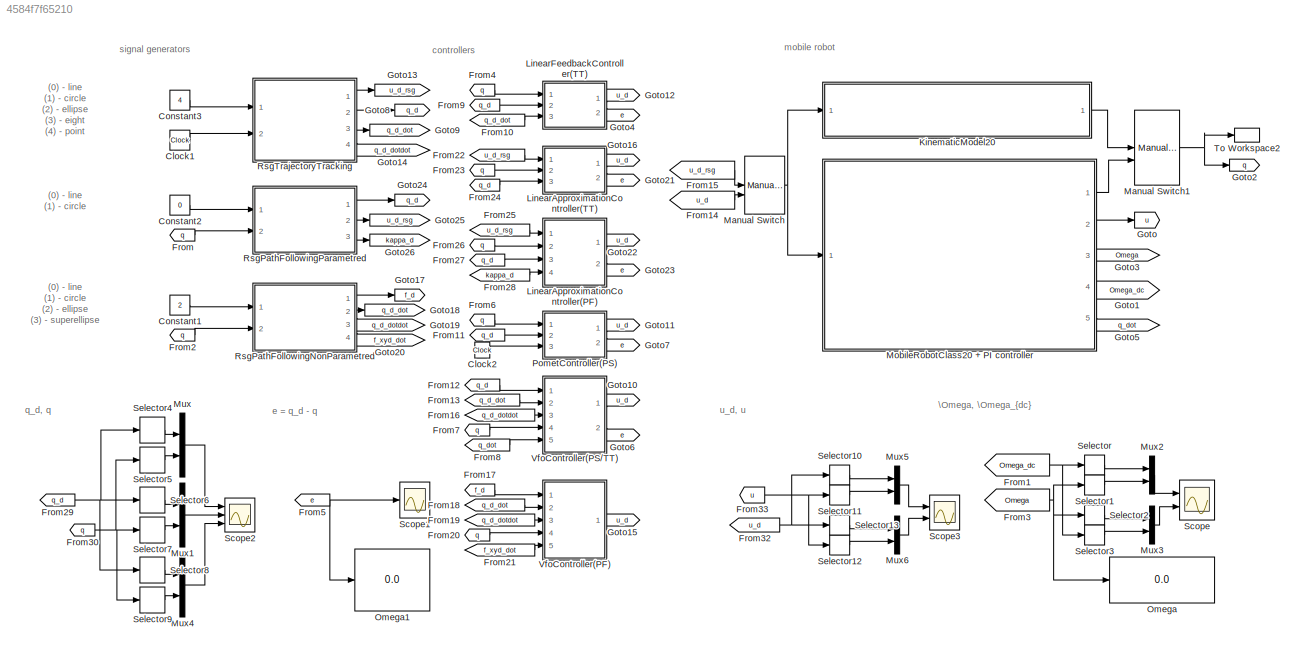
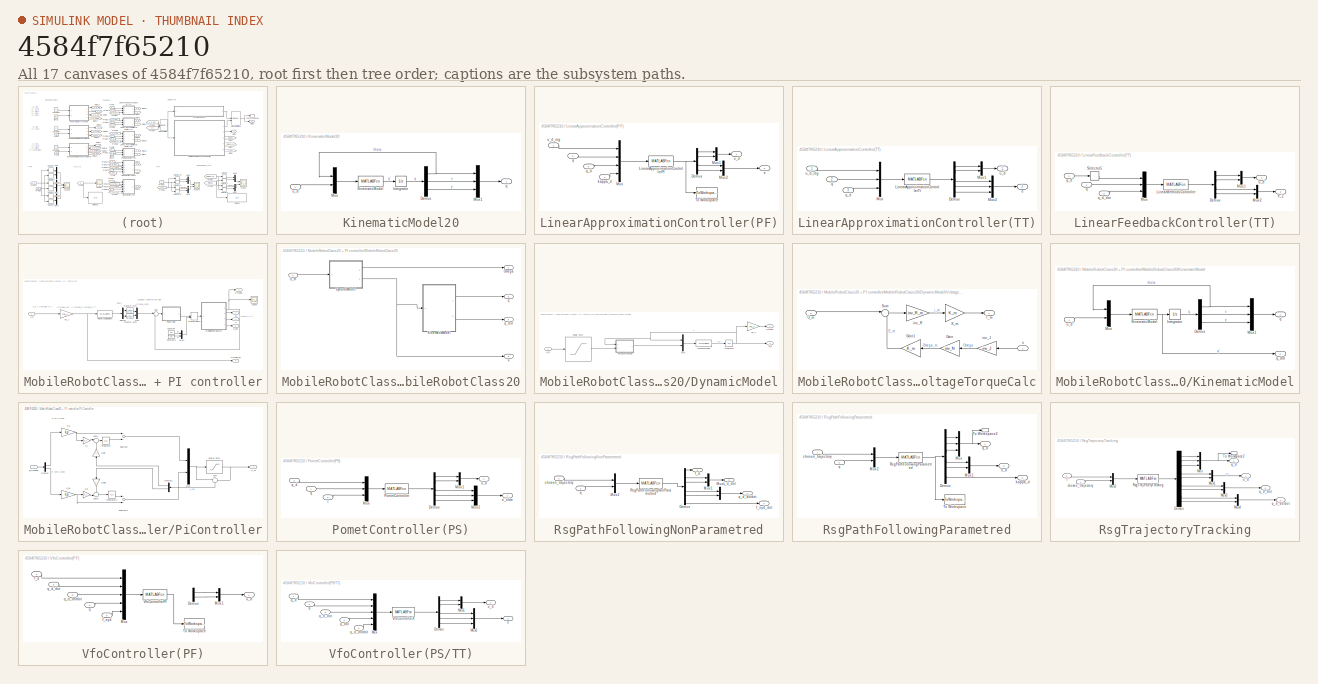
[diagram: thumbnail index - all 17 canvases of the model, root first then tree order]
MODEL slx_4584f7f65210
KIND model
CONFIG AbsTol = auto
CONFIG EnableMultiTasking = off
CONFIG FixedStep = t_pp
CONFIG MaxStep = t_pp
CONFIG MinStep = auto
CONFIG RelTol = 1e-3
CONFIG SampleTimeConstraint = Unconstrained
CONFIG Solver = ode45
CONFIG SolverName = ode45
CONFIG StartTime = 0.0
CONFIG StopTime = t_end
BLOCK [Clock] Clock1
BLOCK [Clock] Clock2
  Commented = on
BLOCK [Constant] Constant1
  Commented = on
  Value = 2
BLOCK [Constant] Constant2
  Commented = on
  Value = 0
BLOCK [Constant] Constant3
  Value = 4
BLOCK [From] From
  Commented = on
  GotoTag = q
BLOCK [From] From1
  GotoTag = Omega_dc
BLOCK [From] From10
  Commented = on
  GotoTag = q_d_dot
BLOCK [From] From11
  Commented = on
  GotoTag = q_d
BLOCK [From] From12
  GotoTag = q_d
BLOCK [From] From13
  GotoTag = q_d_dot
BLOCK [From] From14
  GotoTag = u_d
BLOCK [From] From15
  GotoTag = u_d_rsg
BLOCK [From] From16
  GotoTag = q_d_dotdot
BLOCK [From] From17
  Commented = on
  GotoTag = f_d
BLOCK [From] From18
  Commented = on
  GotoTag = q_d_dot
BLOCK [From] From19
  Commented = on
  GotoTag = q_d_dotdot
BLOCK [From] From2
  Commented = on
  GotoTag = q
BLOCK [From] From20
  Commented = on
  GotoTag = q
BLOCK [From] From21
  Commented = on
  GotoTag = f_xyd_dot
BLOCK [From] From22
  Commented = on
  GotoTag = u_d_rsg
BLOCK [From] From23
  Commented = on
  GotoTag = q
BLOCK [From] From24
  Commented = on
  GotoTag = q_d
BLOCK [From] From25
  Commented = on
  GotoTag = u_d_rsg
BLOCK [From] From26
  Commented = on
  GotoTag = q
BLOCK [From] From27
  Commented = on
  GotoTag = q_d
BLOCK [From] From28
  Commented = on
  GotoTag = kappa_d
BLOCK [From] From29
  GotoTag = q_d
BLOCK [From] From3
  GotoTag = Omega
BLOCK [From] From30
  GotoTag = q
BLOCK [From] From32
  GotoTag = u_d
BLOCK [From] From33
  GotoTag = u
BLOCK [From] From4
  Commented = on
  GotoTag = q
BLOCK [From] From5
  GotoTag = e
BLOCK [From] From6
  Commented = on
  GotoTag = q
BLOCK [From] From7
  GotoTag = q
BLOCK [From] From8
  GotoTag = q_dot
BLOCK [From] From9
  Commented = on
  GotoTag = q_d
BLOCK [Goto] Goto
  GotoTag = u
BLOCK [Goto] Goto1
  GotoTag = Omega_dc
BLOCK [Goto] Goto10
  GotoTag = u_d
BLOCK [Goto] Goto11
  Commented = on
  GotoTag = u_d
BLOCK [Goto] Goto12
  Commented = on
  GotoTag = u_d
BLOCK [Goto] Goto13
  GotoTag = u_d_rsg
BLOCK [Goto] Goto14
  GotoTag = q_d_dotdot
BLOCK [Goto] Goto15
  Commented = on
  GotoTag = u_d
BLOCK [Goto] Goto16
  Commented = on
  GotoTag = u_d
BLOCK [Goto] Goto17
  Commented = on
  GotoTag = f_d
BLOCK [Goto] Goto18
  Commented = on
  GotoTag = q_d_dot
BLOCK [Goto] Goto19
  Commented = on
  GotoTag = q_d_dotdot
BLOCK [Goto] Goto2
  GotoTag = q
BLOCK [Goto] Goto20
  Commented = on
  GotoTag = f_xyd_dot
BLOCK [Goto] Goto21
  Commented = on
  GotoTag = e
BLOCK [Goto] Goto22
  Commented = on
  GotoTag = u_d
BLOCK [Goto] Goto23
  Commented = on
  GotoTag = e
BLOCK [Goto] Goto24
  Commented = on
  GotoTag = q_d
BLOCK [Goto] Goto25
  Commented = on
  GotoTag = u_d_rsg
BLOCK [Goto] Goto26
  Commented = on
  GotoTag = kappa_d
BLOCK [Goto] Goto3
  GotoTag = Omega
BLOCK [Goto] Goto4
  Commented = on
  GotoTag = e
BLOCK [Goto] Goto5
  GotoTag = q_dot
BLOCK [Goto] Goto6
  GotoTag = e
BLOCK [Goto] Goto7
  Commented = on
  GotoTag = e
BLOCK [Goto] Goto8
  GotoTag = q_d
BLOCK [Goto] Goto9
  GotoTag = q_d_dot
BLOCK [SubSystem] KinematicModel20
  Ports = [1, 1]
  RequestExecContextInheritance = off
BLOCK [Demux] KinematicModel20/Demux
  DisplayOption = bar
  Outputs = 3
  Ports = [1, 3]
BLOCK [Integrator] KinematicModel20/Integrator
  InitialCondition = q_initial_conditions
  Ports = [1, 1]
BLOCK [MATLABFcn] KinematicModel20/KinematicModel
  MATLABFcn = KinematicModel
  Ports = [1, 1]
BLOCK [Mux] KinematicModel20/Mux
  DisplayOption = bar
  Inputs = 2
  Ports = [2, 1]
BLOCK [Mux] KinematicModel20/Mux1
  DisplayOption = bar
  Inputs = 3
  Ports = [3, 1]
BLOCK [Outport] KinematicModel20/q
  IconDisplay = Port number
BLOCK [Inport] KinematicModel20/u_d
  IconDisplay = Port number
BLOCK [SubSystem] LinearApproximationController(PF)
  Commented = on
  Ports = [4, 2]
  RequestExecContextInheritance = off
BLOCK [Demux] LinearApproximationController(PF)/Demux
  DisplayOption = bar
  Ports = [1, 4]
BLOCK [MATLABFcn] LinearApproximationController(PF)/LinearApproximationControllerPf
  MATLABFcn = LinearApproximationPf
  Ports = [1, 1]
BLOCK [Mux] LinearApproximationController(PF)/Mux
  DisplayOption = bar
  Ports = [4, 1]
BLOCK [Mux] LinearApproximationController(PF)/Mux1
  DisplayOption = bar
  Inputs = 2
  Ports = [2, 1]
BLOCK [Mux] LinearApproximationController(PF)/Mux2
  DisplayOption = bar
  Inputs = 2
  Ports = [2, 1]
BLOCK [ToWorkspace] LinearApproximationController(PF)/To Workspace
  Commented = on
  FixptAsFi = on
  MaxDataPoints = inf
  Ports = [1]
  SampleTime = -1
  Save2DSignal = 3-D array (concatenate along third dimension)
  VariableName = linear_output
BLOCK [Outport] LinearApproximationController(PF)/e
  IconDisplay = Port number
  Port = 2
BLOCK [Inport] LinearApproximationController(PF)/kappa_d
  IconDisplay = Port number
  Port = 4
BLOCK [Inport] LinearApproximationController(PF)/q
  IconDisplay = Port number
  Port = 2
BLOCK [Inport] LinearApproximationController(PF)/q_d
  IconDisplay = Port number
  Port = 3
BLOCK [Outport] LinearApproximationController(PF)/u_d
  IconDisplay = Port number
BLOCK [Inport] LinearApproximationController(PF)/u_d_rsg
  IconDisplay = Port number
BLOCK [SubSystem] LinearApproximationController(TT)
  Commented = on
  Ports = [3, 2]
  RequestExecContextInheritance = off
BLOCK [Demux] LinearApproximationController(TT)/Demux
  DisplayOption = bar
  Outputs = 5
  Ports = [1, 5]
BLOCK [MATLABFcn] LinearApproximationController(TT)/LinearApproximationControllerTt
  MATLABFcn = LinearApproximationTt
  Ports = [1, 1]
BLOCK [Mux] LinearApproximationController(TT)/Mux
  DisplayOption = bar
  Inputs = 3
  Ports = [3, 1]
BLOCK [Mux] LinearApproximationController(TT)/Mux1
  DisplayOption = bar
  Inputs = 2
  Ports = [2, 1]
BLOCK [Mux] LinearApproximationController(TT)/Mux2
  DisplayOption = bar
  Inputs = 3
  Ports = [3, 1]
BLOCK [Outport] LinearApproximationController(TT)/e
  IconDisplay = Port number
  Port = 2
BLOCK [Inport] LinearApproximationController(TT)/q
  IconDisplay = Port number
  Port = 2
BLOCK [Inport] LinearApproximationController(TT)/q_d
  IconDisplay = Port number
  Port = 3
BLOCK [Outport] LinearApproximationController(TT)/u_d
  IconDisplay = Port number
BLOCK [Inport] LinearApproximationController(TT)/u_d_rsg
  IconDisplay = Port number
BLOCK [SubSystem] LinearFeedbackController(TT)
  Commented = on
  Ports = [3, 2]
  RequestExecContextInheritance = off
BLOCK [Demux] LinearFeedbackController(TT)/Demux
  DisplayOption = bar
  Ports = [1, 4]
BLOCK [MATLABFcn] LinearFeedbackController(TT)/LinearMethodsController
  MATLABFcn = LinearMethodsController
  Ports = [1, 1]
BLOCK [Mux] LinearFeedbackController(TT)/Mux
  DisplayOption = bar
  Inputs = 3
  Ports = [3, 1]
BLOCK [Mux] LinearFeedbackController(TT)/Mux1
  DisplayOption = bar
  Inputs = 2
  Ports = [2, 1]
BLOCK [Mux] LinearFeedbackController(TT)/Mux2
  DisplayOption = bar
  Inputs = 2
  Ports = [2, 1]
BLOCK [Selector] LinearFeedbackController(TT)/Selector5
  IndexOptions = Index vector (dialog)
  Indices = [2 3]
  InputPortWidth = 3
  OutputSizes = 1
  Ports = [1, 1]
BLOCK [Outport] LinearFeedbackController(TT)/e_Z
  IconDisplay = Port number
  Port = 2
BLOCK [Inport] LinearFeedbackController(TT)/q
  IconDisplay = Port number
BLOCK [Inport] LinearFeedbackController(TT)/q_d
  IconDisplay = Port number
  Port = 2
BLOCK [Inport] LinearFeedbackController(TT)/q_d_dot
  IconDisplay = Port number
  Port = 3
BLOCK [Outport] LinearFeedbackController(TT)/u_d
  IconDisplay = Port number
BLOCK [ManualSwitch] Manual Switch
  CurrentSetting = 0
BLOCK [ManualSwitch] Manual Switch1
  CurrentSetting = 0
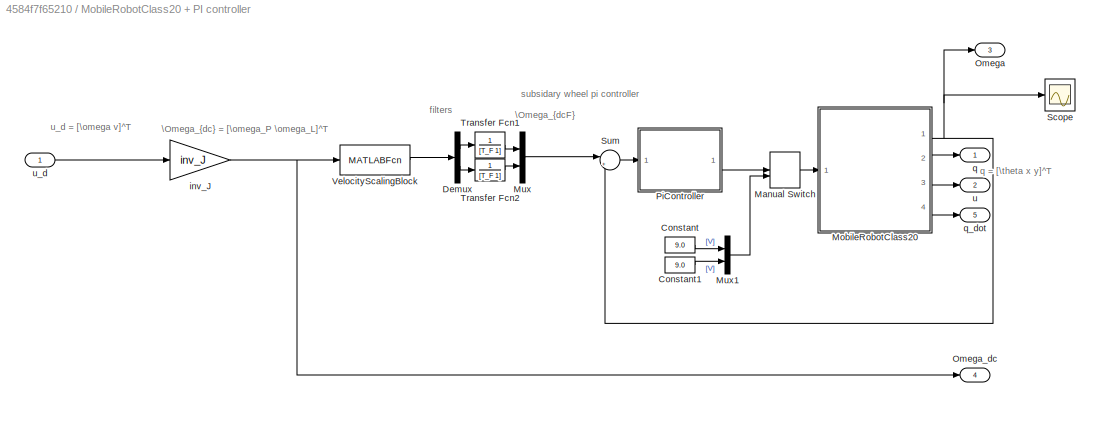
BLOCK [SubSystem] MobileRobotClass20 + PI controller
  Ports = [1, 5]
  RequestExecContextInheritance = off
BLOCK [Constant] MobileRobotClass20 + PI controller/Constant
  Value = 9.0
BLOCK [Constant] MobileRobotClass20 + PI controller/Constant1
  Value = 9.0
BLOCK [Demux] MobileRobotClass20 + PI controller/Demux
  DisplayOption = bar
  Outputs = 2
  Ports = [1, 2]
BLOCK [ManualSwitch] MobileRobotClass20 + PI controller/Manual Switch
BLOCK [SubSystem] MobileRobotClass20 + PI controller/MobileRobotClass20
  Ports = [1, 4]
  RequestExecContextInheritance = off
BLOCK [SubSystem] MobileRobotClass20 + PI controller/MobileRobotClass20/DynamicModel
  Ports = [1, 2]
  RequestExecContextInheritance = off
BLOCK [MATLABFcn] MobileRobotClass20 + PI controller/MobileRobotClass20/DynamicModel/DynamicModel
  MATLABFcn = DynamicModel
  Ports = [1, 1]
BLOCK [Integrator] MobileRobotClass20 + PI controller/MobileRobotClass20/DynamicModel/Integrator
  InitialCondition = u_initial_conditions
  Ports = [1, 1]
BLOCK [Mux] MobileRobotClass20 + PI controller/MobileRobotClass20/DynamicModel/Mux
  DisplayOption = bar
  Inputs = 2
  Ports = [2, 1]
BLOCK [Outport] MobileRobotClass20 + PI controller/MobileRobotClass20/DynamicModel/Omega
  IconDisplay = Port number
BLOCK [Inport] MobileRobotClass20 + PI controller/MobileRobotClass20/DynamicModel/U_m
  IconDisplay = Port number
BLOCK [SubSystem] MobileRobotClass20 + PI controller/MobileRobotClass20/DynamicModel/VoltageTorqueCalc
  Ports = [2, 1]
  RequestExecContextInheritance = off
BLOCK [Gain] MobileRobotClass20 + PI controller/MobileRobotClass20/DynamicModel/VoltageTorqueCalc/Gain
  Gain = inv_N
  Multiplication = Matrix(K*u) (u vector)
  OutDataTypeStr = Inherit: Inherit via internal rule
  ParamDataTypeStr = Inherit: Inherit via internal rule
  SaturateOnIntegerOverflow = off
BLOCK [Gain] MobileRobotClass20 + PI controller/MobileRobotClass20/DynamicModel/VoltageTorqueCalc/Gain1
  Gain = K_m
  Multiplication = Matrix(K*u) (u vector)
  OutDataTypeStr = Inherit: Inherit via internal rule
  ParamDataTypeStr = Inherit: Inherit via internal rule
  SaturateOnIntegerOverflow = off
BLOCK [Gain] MobileRobotClass20 + PI controller/MobileRobotClass20/DynamicModel/VoltageTorqueCalc/K_m
  Gain = K_m
  Multiplication = Matrix(K*u) (u vector)
  OutDataTypeStr = Inherit: Inherit via internal rule
  ParamDataTypeStr = Inherit: Inherit via internal rule
  SaturateOnIntegerOverflow = off
BLOCK [Sum] MobileRobotClass20 + PI controller/MobileRobotClass20/DynamicModel/VoltageTorqueCalc/Sum
  IconShape = round
  InputSameDT = off
  Inputs = |+-
  OutDataTypeStr = Inherit: Inherit via internal rule
  Ports = [2, 1]
  SaturateOnIntegerOverflow = off
BLOCK [Outport] MobileRobotClass20 + PI controller/MobileRobotClass20/DynamicModel/VoltageTorqueCalc/T_m
  IconDisplay = Port number
BLOCK [Inport] MobileRobotClass20 + PI controller/MobileRobotClass20/DynamicModel/VoltageTorqueCalc/U_m
  IconDisplay = Port number
  Port = 2
BLOCK [Gain] MobileRobotClass20 + PI controller/MobileRobotClass20/DynamicModel/VoltageTorqueCalc/inv_J
  Gain = inv_J
  Multiplication = Matrix(K*u) (u vector)
  OutDataTypeStr = Inherit: Inherit via internal rule
  ParamDataTypeStr = Inherit: Inherit via internal rule
  SaturateOnIntegerOverflow = off
BLOCK [Gain] MobileRobotClass20 + PI controller/MobileRobotClass20/DynamicModel/VoltageTorqueCalc/inv_R
  Gain = inv_R_m
  Multiplication = Matrix(K*u) (u vector)
  OutDataTypeStr = Inherit: Inherit via internal rule
  ParamDataTypeStr = Inherit: Inherit via internal rule
  SaturateOnIntegerOverflow = off
BLOCK [Inport] MobileRobotClass20 + PI controller/MobileRobotClass20/DynamicModel/VoltageTorqueCalc/u
  IconDisplay = Port number
BLOCK [Gain] MobileRobotClass20 + PI controller/MobileRobotClass20/DynamicModel/inv_J
  Gain = inv_J
  Multiplication = Matrix(K*u) (u vector)
  OutDataTypeStr = Inherit: Inherit via internal rule
  ParamDataTypeStr = Inherit: Inherit via internal rule
  SaturateOnIntegerOverflow = off
BLOCK [Saturate] MobileRobotClass20 + PI controller/MobileRobotClass20/DynamicModel/power amp
  InputPortMap = u0
  LowerLimit = u_min
  Ports = [1, 1]
  UpperLimit = u_max
BLOCK [Outport] MobileRobotClass20 + PI controller/MobileRobotClass20/DynamicModel/u_d
  IconDisplay = Port number
  Port = 2
BLOCK [SubSystem] MobileRobotClass20 + PI controller/MobileRobotClass20/KinematicModel
  Ports = [1, 2]
  RequestExecContextInheritance = off
BLOCK [Demux] MobileRobotClass20 + PI controller/MobileRobotClass20/KinematicModel/Demux
  DisplayOption = bar
  Outputs = 3
  Ports = [1, 3]
BLOCK [Integrator] MobileRobotClass20 + PI controller/MobileRobotClass20/KinematicModel/Integrator
  InitialCondition = q_initial_conditions
  Ports = [1, 1]
BLOCK [MATLABFcn] MobileRobotClass20 + PI controller/MobileRobotClass20/KinematicModel/KinematicModel
  MATLABFcn = KinematicModel
  Ports = [1, 1]
BLOCK [Mux] MobileRobotClass20 + PI controller/MobileRobotClass20/KinematicModel/Mux
  DisplayOption = bar
  Inputs = 2
  Ports = [2, 1]
BLOCK [Mux] MobileRobotClass20 + PI controller/MobileRobotClass20/KinematicModel/Mux1
  DisplayOption = bar
  Inputs = 3
  Ports = [3, 1]
BLOCK [Outport] MobileRobotClass20 + PI controller/MobileRobotClass20/KinematicModel/q
  IconDisplay = Port number
BLOCK [Outport] MobileRobotClass20 + PI controller/MobileRobotClass20/KinematicModel/q_dot
  IconDisplay = Port number
  Port = 2
BLOCK [Inport] MobileRobotClass20 + PI controller/MobileRobotClass20/KinematicModel/u_d
  IconDisplay = Port number
BLOCK [Outport] MobileRobotClass20 + PI controller/MobileRobotClass20/Omega
  IconDisplay = Port number
BLOCK [Inport] MobileRobotClass20 + PI controller/MobileRobotClass20/U_m
  IconDisplay = Port number
BLOCK [Outport] MobileRobotClass20 + PI controller/MobileRobotClass20/q
  IconDisplay = Port number
  Port = 2
BLOCK [Outport] MobileRobotClass20 + PI controller/MobileRobotClass20/q_dot
  IconDisplay = Port number
  Port = 4
BLOCK [Outport] MobileRobotClass20 + PI controller/MobileRobotClass20/u
  IconDisplay = Port number
  Port = 3
BLOCK [Mux] MobileRobotClass20 + PI controller/Mux
  DisplayOption = bar
  Inputs = 2
  Ports = [2, 1]
BLOCK [Mux] MobileRobotClass20 + PI controller/Mux1
  DisplayOption = bar
  Inputs = 2
  Ports = [2, 1]
BLOCK [Outport] MobileRobotClass20 + PI controller/Omega
  IconDisplay = Port number
  Port = 3
BLOCK [Outport] MobileRobotClass20 + PI controller/Omega_dc
  IconDisplay = Port number
  Port = 4
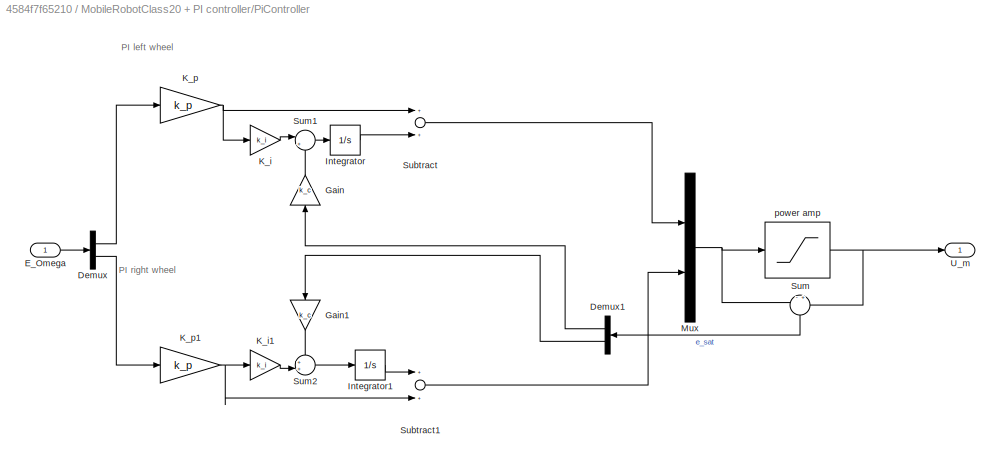
BLOCK [SubSystem] MobileRobotClass20 + PI controller/PiController
  Ports = [1, 1]
  RequestExecContextInheritance = off
BLOCK [Demux] MobileRobotClass20 + PI controller/PiController/Demux
  DisplayOption = bar
  Outputs = 2
  Ports = [1, 2]
BLOCK [Demux] MobileRobotClass20 + PI controller/PiController/Demux1
  DisplayOption = bar
  Outputs = 2
  Ports = [1, 2]
BLOCK [Inport] MobileRobotClass20 + PI controller/PiController/E_Omega
  IconDisplay = Port number
BLOCK [Gain] MobileRobotClass20 + PI controller/PiController/Gain
  Gain = k_c
  OutDataTypeStr = Inherit: Inherit via internal rule
  ParamDataTypeStr = Inherit: Inherit via internal rule
  SaturateOnIntegerOverflow = off
BLOCK [Gain] MobileRobotClass20 + PI controller/PiController/Gain1
  Gain = k_c
  OutDataTypeStr = Inherit: Inherit via internal rule
  ParamDataTypeStr = Inherit: Inherit via internal rule
  SaturateOnIntegerOverflow = off
BLOCK [Integrator] MobileRobotClass20 + PI controller/PiController/Integrator
  InitialCondition = [0]
  Ports = [1, 1]
BLOCK [Integrator] MobileRobotClass20 + PI controller/PiController/Integrator1
  InitialCondition = [0]
  Ports = [1, 1]
BLOCK [Gain] MobileRobotClass20 + PI controller/PiController/K_i
  Gain = k_i
  OutDataTypeStr = Inherit: Inherit via internal rule
  ParamDataTypeStr = Inherit: Inherit via internal rule
  SaturateOnIntegerOverflow = off
BLOCK [Gain] MobileRobotClass20 + PI controller/PiController/K_i1
  Gain = k_i
  OutDataTypeStr = Inherit: Inherit via internal rule
  ParamDataTypeStr = Inherit: Inherit via internal rule
  SaturateOnIntegerOverflow = off
BLOCK [Gain] MobileRobotClass20 + PI controller/PiController/K_p
  Gain = k_p
  OutDataTypeStr = Inherit: Inherit via internal rule
  ParamDataTypeStr = Inherit: Inherit via internal rule
  SaturateOnIntegerOverflow = off
BLOCK [Gain] MobileRobotClass20 + PI controller/PiController/K_p1
  Gain = k_p
  OutDataTypeStr = Inherit: Inherit via internal rule
  ParamDataTypeStr = Inherit: Inherit via internal rule
  SaturateOnIntegerOverflow = off
BLOCK [Mux] MobileRobotClass20 + PI controller/PiController/Mux
  DisplayOption = bar
  Inputs = 2
  Ports = [2, 1]
BLOCK [Sum] MobileRobotClass20 + PI controller/PiController/Subtract
  InputSameDT = off
  OutDataTypeStr = Inherit: Inherit via internal rule
  Ports = [2, 1]
  SaturateOnIntegerOverflow = off
BLOCK [Sum] MobileRobotClass20 + PI controller/PiController/Subtract1
  InputSameDT = off
  OutDataTypeStr = Inherit: Inherit via internal rule
  Ports = [2, 1]
  SaturateOnIntegerOverflow = off
BLOCK [Sum] MobileRobotClass20 + PI controller/PiController/Sum
  IconShape = round
  InputSameDT = off
  Inputs = -+
  OutDataTypeStr = Inherit: Inherit via internal rule
  Ports = [2, 1]
  SaturateOnIntegerOverflow = off
BLOCK [Sum] MobileRobotClass20 + PI controller/PiController/Sum1
  IconShape = round
  InputSameDT = off
  Inputs = |++
  OutDataTypeStr = Inherit: Inherit via internal rule
  Ports = [2, 1]
  SaturateOnIntegerOverflow = off
BLOCK [Sum] MobileRobotClass20 + PI controller/PiController/Sum2
  IconShape = round
  InputSameDT = off
  Inputs = ++|
  OutDataTypeStr = Inherit: Inherit via internal rule
  Ports = [2, 1]
  SaturateOnIntegerOverflow = off
BLOCK [Outport] MobileRobotClass20 + PI controller/PiController/U_m
  IconDisplay = Port number
BLOCK [Saturate] MobileRobotClass20 + PI controller/PiController/power amp
  InputPortMap = u0
  LowerLimit = u_min
  Ports = [1, 1]
  UpperLimit = u_max
BLOCK [Scope] MobileRobotClass20 + PI controller/Scope
  Floating = off
  NumInputPorts = 1
  Ports = [1]
  ScopeSpecificationString = Simulink.scopes.TimeScopeBlockCfg('CurrentConfiguration', extmgr.ConfigurationSet(extmgr.Configuration('Core','General UI',true),extmgr.Configuration('Core','Source UI',true),extmgr.Configuration('Sources','WiredSimulink',true,'DataLoggingVariableName','ScopeData1'),extmgr.Configuration('Visuals','Time Domain',true,'SerializedDisplays',{struct('MinYLimReal','-10.00037','MaxYLimReal','90.0033','YLa...<+1502ch>
BLOCK [Sum] MobileRobotClass20 + PI controller/Sum
  IconShape = round
  InputSameDT = off
  Inputs = |+-
  OutDataTypeStr = Inherit: Inherit via internal rule
  Ports = [2, 1]
  SaturateOnIntegerOverflow = off
BLOCK [TransferFcn] MobileRobotClass20 + PI controller/Transfer Fcn1
  Denominator = [T_F 1]
  Numerator = 1
BLOCK [TransferFcn] MobileRobotClass20 + PI controller/Transfer Fcn2
  Denominator = [T_F 1]
  Numerator = 1
BLOCK [MATLABFcn] MobileRobotClass20 + PI controller/VelocityScalingBlock
  MATLABFcn = VelocityScalingBlock
  Ports = [1, 1]
BLOCK [Gain] MobileRobotClass20 + PI controller/inv_J
  Gain = inv_J
  Multiplication = Matrix(K*u)
  OutDataTypeStr = Inherit: Inherit via internal rule
  ParamDataTypeStr = Inherit: Inherit via internal rule
  SaturateOnIntegerOverflow = off
BLOCK [Outport] MobileRobotClass20 + PI controller/q
  IconDisplay = Port number
BLOCK [Outport] MobileRobotClass20 + PI controller/q_dot
  IconDisplay = Port number
  Port = 5
BLOCK [Outport] MobileRobotClass20 + PI controller/u
  IconDisplay = Port number
  Port = 2
BLOCK [Inport] MobileRobotClass20 + PI controller/u_d
  IconDisplay = Port number
BLOCK [Mux] Mux
  DisplayOption = bar
  Inputs = 2
  Ports = [2, 1]
BLOCK [Mux] Mux1
  DisplayOption = bar
  Inputs = 2
  Ports = [2, 1]
BLOCK [Mux] Mux2
  DisplayOption = bar
  Inputs = 2
  Ports = [2, 1]
BLOCK [Mux] Mux3
  DisplayOption = bar
  Inputs = 2
  Ports = [2, 1]
BLOCK [Mux] Mux4
  DisplayOption = bar
  Inputs = 2
  Ports = [2, 1]
BLOCK [Mux] Mux5
  DisplayOption = bar
  Inputs = 2
  Ports = [2, 1]
BLOCK [Mux] Mux6
  DisplayOption = bar
  Inputs = 2
  Ports = [2, 1]
BLOCK [Display] Omega
  Decimation = 1
  Ports = [1]
BLOCK [Display] Omega1
  Decimation = 1
  Ports = [1]
BLOCK [SubSystem] PometController(PS)
  Commented = on
  Ports = [3, 2]
  RequestExecContextInheritance = off
BLOCK [Demux] PometController(PS)/Demux
  DisplayOption = bar
  Outputs = 5
  Ports = [1, 5]
BLOCK [Mux] PometController(PS)/Mux
  DisplayOption = bar
  Inputs = 3
  Ports = [3, 1]
BLOCK [Mux] PometController(PS)/Mux1
  DisplayOption = bar
  Inputs = 2
  Ports = [2, 1]
BLOCK [Mux] PometController(PS)/Mux2
  DisplayOption = bar
  Inputs = 3
  Ports = [3, 1]
BLOCK [MATLABFcn] PometController(PS)/PometController
  MATLABFcn = PometController
  Ports = [1, 1]
BLOCK [Outport] PometController(PS)/e_tilde
  IconDisplay = Port number
  Port = 2
BLOCK [Inport] PometController(PS)/q
  IconDisplay = Port number
BLOCK [Inport] PometController(PS)/q_d
  IconDisplay = Port number
  Port = 2
BLOCK [Inport] PometController(PS)/t
  IconDisplay = Port number
  Port = 3
BLOCK [Outport] PometController(PS)/u_d
  IconDisplay = Port number
BLOCK [SubSystem] RsgPathFollowingNonParametred
  Commented = on
  Ports = [2, 4]
  RequestExecContextInheritance = off
BLOCK [Demux] RsgPathFollowingNonParametred/Demux
  DisplayOption = bar
  Outputs = 6
  Ports = [1, 6]
BLOCK [Mux] RsgPathFollowingNonParametred/Mux
  DisplayOption = bar
  Inputs = 2
  Ports = [2, 1]
BLOCK [Mux] RsgPathFollowingNonParametred/Mux1
  DisplayOption = bar
  Inputs = 2
  Ports = [2, 1]
BLOCK [Mux] RsgPathFollowingNonParametred/Mux2
  DisplayOption = bar
  Inputs = 2
  Ports = [2, 1]
BLOCK [MATLABFcn] RsgPathFollowingNonParametred/RsgPathFollowingNonParametred
  MATLABFcn = RsgPathFollowingNonParametred
  Ports = [1, 1]
BLOCK [Inport] RsgPathFollowingNonParametred/chosen_trajectory
  IconDisplay = Port number
BLOCK [Outport] RsgPathFollowingNonParametred/f_d
  IconDisplay = Port number
BLOCK [Outport] RsgPathFollowingNonParametred/f_xyd_dot
  IconDisplay = Port number
  Port = 4
BLOCK [Inport] RsgPathFollowingNonParametred/q
  IconDisplay = Port number
  Port = 2
BLOCK [Outport] RsgPathFollowingNonParametred/q_d_dot
  IconDisplay = Port number
  Port = 2
BLOCK [Outport] RsgPathFollowingNonParametred/q_d_dotdot
  IconDisplay = Port number
  Port = 3
BLOCK [SubSystem] RsgPathFollowingParametred
  Commented = on
  Ports = [2, 3]
  RequestExecContextInheritance = off
BLOCK [Demux] RsgPathFollowingParametred/Demux
  DisplayOption = bar
  Outputs = 6
  Ports = [1, 6]
BLOCK [Mux] RsgPathFollowingParametred/Mux
  DisplayOption = bar
  Inputs = 3
  Ports = [3, 1]
BLOCK [Mux] RsgPathFollowingParametred/Mux1
  DisplayOption = bar
  Inputs = 2
  Ports = [2, 1]
BLOCK [Mux] RsgPathFollowingParametred/Mux2
  DisplayOption = bar
  Inputs = 2
  Ports = [2, 1]
BLOCK [MATLABFcn] RsgPathFollowingParametred/RsgPathFollowingParametred
  MATLABFcn = RsgPathFollowingParametred
  Ports = [1, 1]
BLOCK [ToWorkspace] RsgPathFollowingParametred/To Workspace
  Commented = on
  FixptAsFi = on
  MaxDataPoints = inf
  Ports = [1]
  SampleTime = -1
  Save2DSignal = 3-D array (concatenate along third dimension)
  VariableName = rsg_output
BLOCK [ToWorkspace] RsgPathFollowingParametred/To Workspace2
  FixptAsFi = on
  MaxDataPoints = inf
  Ports = [1]
  SampleTime = -1
  Save2DSignal = 3-D array (concatenate along third dimension)
  VariableName = q_d
BLOCK [Inport] RsgPathFollowingParametred/chosen_trajectory
  IconDisplay = Port number
BLOCK [Outport] RsgPathFollowingParametred/kappa_d
  IconDisplay = Port number
  Port = 3
BLOCK [Inport] RsgPathFollowingParametred/q
  IconDisplay = Port number
  Port = 2
BLOCK [Outport] RsgPathFollowingParametred/q_d
  IconDisplay = Port number
BLOCK [Outport] RsgPathFollowingParametred/u_d
  IconDisplay = Port number
  Port = 2
BLOCK [SubSystem] RsgTrajectoryTracking
  Ports = [2, 4]
  RequestExecContextInheritance = off
BLOCK [Demux] RsgTrajectoryTracking/Demux
  DisplayOption = bar
  Outputs = 9
  Ports = [1, 9]
BLOCK [Mux] RsgTrajectoryTracking/Mux
  DisplayOption = bar
  Inputs = 3
  Ports = [3, 1]
BLOCK [Mux] RsgTrajectoryTracking/Mux1
  DisplayOption = bar
  Inputs = 2
  Ports = [2, 1]
BLOCK [Mux] RsgTrajectoryTracking/Mux2
  DisplayOption = bar
  Inputs = 2
  Ports = [2, 1]
BLOCK [Mux] RsgTrajectoryTracking/Mux3
  DisplayOption = bar
  Inputs = 2
  Ports = [2, 1]
BLOCK [Mux] RsgTrajectoryTracking/Mux4
  DisplayOption = bar
  Inputs = 2
  Ports = [2, 1]
BLOCK [MATLABFcn] RsgTrajectoryTracking/RsgTrajectoryTracking
  MATLABFcn = RsgTrajectoryTracking
  Ports = [1, 1]
BLOCK [ToWorkspace] RsgTrajectoryTracking/To Workspace2
  FixptAsFi = on
  MaxDataPoints = inf
  Ports = [1]
  SampleTime = -1
  Save2DSignal = 3-D array (concatenate along third dimension)
  VariableName = q_d
BLOCK [Inport] RsgTrajectoryTracking/chosen_trajectory
  IconDisplay = Port number
BLOCK [Outport] RsgTrajectoryTracking/q_d
  IconDisplay = Port number
  Port = 2
BLOCK [Outport] RsgTrajectoryTracking/q_d_dot
  IconDisplay = Port number
  Port = 3
BLOCK [Outport] RsgTrajectoryTracking/q_d_dotdot
  IconDisplay = Port number
  Port = 4
BLOCK [Inport] RsgTrajectoryTracking/t
  IconDisplay = Port number
  Port = 2
BLOCK [Outport] RsgTrajectoryTracking/u_d
  IconDisplay = Port number
BLOCK [Scope] Scope
  Floating = off
  NumInputPorts = 2
  Ports = [2]
  ScopeSpecificationString = Simulink.scopes.TimeScopeBlockCfg('CurrentConfiguration', extmgr.ConfigurationSet(extmgr.Configuration('Core','General UI',true),extmgr.Configuration('Core','Source UI',true),extmgr.Configuration('Sources','WiredSimulink',true),extmgr.Configuration('Visuals','Time Domain',true,'SerializedDisplays',{struct('MinYLimReal','-10.81774','MaxYLimReal','97.35969','YLabelReal','','MinYLimMag','0.00000','Ma...<+2234ch>
BLOCK [Scope] Scope1
  Floating = off
  NumInputPorts = 1
  Ports = [1]
  ScopeSpecificationString = Simulink.scopes.TimeScopeBlockCfg('CurrentConfiguration', extmgr.ConfigurationSet(extmgr.Configuration('Core','General UI',true,'FigureColor',[1 1 1]),extmgr.Configuration('Core','Source UI',true),extmgr.Configuration('Sources','WiredSimulink',true,'DataLoggingVariableName','ScopeData3'),extmgr.Configuration('Visuals','Time Domain',true,'SerializedDisplays',{struct('MinYLimReal','-1.88171','MaxYLi...<+2171ch>
BLOCK [Scope] Scope2
  Floating = off
  NumInputPorts = 3
  Ports = [3]
  ScopeSpecificationString = Simulink.scopes.TimeScopeBlockCfg('CurrentConfiguration', extmgr.ConfigurationSet(extmgr.Configuration('Core','General UI',true,'FigureColor',[1 1 1]),extmgr.Configuration('Core','Source UI',true),extmgr.Configuration('Sources','WiredSimulink',true,'DataLoggingVariableName','ScopeData1'),extmgr.Configuration('Visuals','Time Domain',true,'SerializedDisplays',{struct('MinYLimReal','-0.26765','MaxYLi...<+3800ch>
BLOCK [Scope] Scope3
  Floating = off
  NumInputPorts = 2
  Ports = [2]
  ScopeSpecificationString = Simulink.scopes.TimeScopeBlockCfg('CurrentConfiguration', extmgr.ConfigurationSet(extmgr.Configuration('Core','General UI',true,'FigureColor',[1 1 1]),extmgr.Configuration('Core','Source UI',true),extmgr.Configuration('Sources','WiredSimulink',true,'DataLoggingVariableName','ScopeData2'),extmgr.Configuration('Visuals','Time Domain',true,'SerializedDisplays',{struct('MinYLimReal','-0.93339','MaxYLi...<+2872ch>
BLOCK [Selector] Selector
  IndexOptions = Index vector (dialog)
  Indices = 1
  InputPortWidth = 2
  OutputSizes = 1
  Ports = [1, 1]
BLOCK [Selector] Selector1
  IndexOptions = Index vector (dialog)
  Indices = 1
  InputPortWidth = 2
  OutputSizes = 1
  Ports = [1, 1]
BLOCK [Selector] Selector10
  IndexOptions = Index vector (dialog)
  Indices = 1
  InputPortWidth = 2
  OutputSizes = 1
  Ports = [1, 1]
BLOCK [Selector] Selector11
  IndexOptions = Index vector (dialog)
  Indices = 1
  InputPortWidth = 2
  OutputSizes = 1
  Ports = [1, 1]
BLOCK [Selector] Selector12
  IndexOptions = Index vector (dialog)
  Indices = 2
  InputPortWidth = 2
  OutputSizes = 1
  Ports = [1, 1]
BLOCK [Selector] Selector13
  IndexOptions = Index vector (dialog)
  Indices = 2
  InputPortWidth = 2
  OutputSizes = 1
  Ports = [1, 1]
BLOCK [Selector] Selector2
  IndexOptions = Index vector (dialog)
  Indices = 2
  InputPortWidth = 2
  OutputSizes = 1
  Ports = [1, 1]
BLOCK [Selector] Selector3
  IndexOptions = Index vector (dialog)
  Indices = 2
  InputPortWidth = 2
  OutputSizes = 1
  Ports = [1, 1]
BLOCK [Selector] Selector4
  IndexOptions = Index vector (dialog)
  Indices = 1
  InputPortWidth = 3
  OutputSizes = 1
  Ports = [1, 1]
BLOCK [Selector] Selector5
  IndexOptions = Index vector (dialog)
  Indices = 1
  InputPortWidth = 3
  OutputSizes = 1
  Ports = [1, 1]
BLOCK [Selector] Selector6
  IndexOptions = Index vector (dialog)
  Indices = 2
  InputPortWidth = 3
  OutputSizes = 1
  Ports = [1, 1]
BLOCK [Selector] Selector7
  IndexOptions = Index vector (dialog)
  Indices = 2
  InputPortWidth = 3
  OutputSizes = 1
  Ports = [1, 1]
BLOCK [Selector] Selector8
  IndexOptions = Index vector (dialog)
  Indices = 3
  InputPortWidth = 3
  OutputSizes = 1
  Ports = [1, 1]
BLOCK [Selector] Selector9
  IndexOptions = Index vector (dialog)
  Indices = 3
  InputPortWidth = 3
  OutputSizes = 1
  Ports = [1, 1]
BLOCK [ToWorkspace] To Workspace2
  FixptAsFi = on
  MaxDataPoints = inf
  Ports = [1]
  SampleTime = -1
  Save2DSignal = 3-D array (concatenate along third dimension)
  VariableName = q
BLOCK [SubSystem] VfoController(PF)
  Commented = on
  Ports = [5, 1]
  RequestExecContextInheritance = off
BLOCK [Demux] VfoController(PF)/Demux
  DisplayOption = bar
  Outputs = 2
  Ports = [1, 2]
BLOCK [Mux] VfoController(PF)/Mux
  DisplayOption = bar
  Inputs = 5
  Ports = [5, 1]
BLOCK [Mux] VfoController(PF)/Mux1
  DisplayOption = bar
  Inputs = 2
  Ports = [2, 1]
BLOCK [ToWorkspace] VfoController(PF)/To Workspace
  FixptAsFi = on
  MaxDataPoints = inf
  Ports = [1]
  SampleTime = -1
  Save2DSignal = 3-D array (concatenate along third dimension)
  VariableName = vfo_output
BLOCK [MATLABFcn] VfoController(PF)/VfoControllerPf
  MATLABFcn = VfoControllerPf
  Ports = [1, 1]
BLOCK [Inport] VfoController(PF)/f_d
  IconDisplay = Port number
BLOCK [Inport] VfoController(PF)/f_xyd
  IconDisplay = Port number
  Port = 5
BLOCK [Inport] VfoController(PF)/q
  IconDisplay = Port number
  Port = 4
BLOCK [Inport] VfoController(PF)/q_d_dot
  IconDisplay = Port number
  Port = 2
BLOCK [Inport] VfoController(PF)/q_d_dotdot
  IconDisplay = Port number
  Port = 3
BLOCK [Outport] VfoController(PF)/u_d
  IconDisplay = Port number
BLOCK [SubSystem] VfoController(PS//TT)
  Ports = [5, 2]
  RequestExecContextInheritance = off
BLOCK [Demux] VfoController(PS//TT)/Demux
  DisplayOption = bar
  Outputs = 5
  Ports = [1, 5]
BLOCK [Mux] VfoController(PS//TT)/Mux
  DisplayOption = bar
  Inputs = 5
  Ports = [5, 1]
BLOCK [Mux] VfoController(PS//TT)/Mux1
  DisplayOption = bar
  Inputs = 2
  Ports = [2, 1]
BLOCK [Mux] VfoController(PS//TT)/Mux2
  DisplayOption = bar
  Inputs = 3
  Ports = [3, 1]
BLOCK [MATLABFcn] VfoController(PS//TT)/VfoControllerX
  MATLABFcn = VfoControllerPs
  Ports = [1, 1]
BLOCK [Outport] VfoController(PS//TT)/e
  IconDisplay = Port number
  Port = 2
BLOCK [Inport] VfoController(PS//TT)/q
  IconDisplay = Port number
  Port = 4
BLOCK [Inport] VfoController(PS//TT)/q_d
  IconDisplay = Port number
BLOCK [Inport] VfoController(PS//TT)/q_d_dot
  IconDisplay = Port number
  Port = 2
BLOCK [Inport] VfoController(PS//TT)/q_d_dotdot
  IconDisplay = Port number
  Port = 3
BLOCK [Inport] VfoController(PS//TT)/q_dot
  IconDisplay = Port number
  Port = 5
BLOCK [Outport] VfoController(PS//TT)/u_d
  IconDisplay = Port number
ANNOTATION (root): (0) - line (1) - circle
ANNOTATION (root): (0) - line (1) - circle (2) - ellipse (3) - eight (4) - point
ANNOTATION (root): (0) - line (1) - circle (2) - ellipse (3) - superellipse
ANNOTATION (root): \Omega, \Omega_{dc}
ANNOTATION (root): controllers
ANNOTATION (root): e = q_d - q
ANNOTATION (root): mobile robot
ANNOTATION (root): q_d, q
ANNOTATION (root): signal generators
ANNOTATION (root): u_d, u
ANNOTATION MobileRobotClass20 + PI controller: \Omega_{dcF}
ANNOTATION MobileRobotClass20 + PI controller: \Omega_{dc} = [\omega_P \omega_L]^T
ANNOTATION MobileRobotClass20 + PI controller: filters
ANNOTATION MobileRobotClass20 + PI controller: q = [\theta x y]^T
ANNOTATION MobileRobotClass20 + PI controller: subsidary wheel pi controller
ANNOTATION MobileRobotClass20 + PI controller: u_d = [\omega v]^T
ANNOTATION MobileRobotClass20 + PI controller/PiController: PI left wheel
ANNOTATION MobileRobotClass20 + PI controller/PiController: PI right wheel
LINE Clock1:1 -> RsgTrajectoryTracking:2
LINE Clock2:1 -> PometController(PS):3
LINE Constant1:1 -> RsgPathFollowingNonParametred:1
LINE Constant2:1 -> RsgPathFollowingParametred:1
LINE Constant3:1 -> RsgTrajectoryTracking:1
LINE From10:1 -> LinearFeedbackController(TT):3
LINE From11:1 -> PometController(PS):2
LINE From12:1 -> VfoController(PS//TT):1
LINE From13:1 -> VfoController(PS//TT):2
LINE From14:1 -> Manual Switch:2
LINE From15:1 -> Manual Switch:1
LINE From16:1 -> VfoController(PS//TT):3
LINE From17:1 -> VfoController(PF):1
LINE From18:1 -> VfoController(PF):2
LINE From19:1 -> VfoController(PF):3
NET From1:1 -> Selector3:1, Selector:1
LINE From20:1 -> VfoController(PF):4
LINE From21:1 -> VfoController(PF):5
LINE From22:1 -> LinearApproximationController(TT):1
LINE From23:1 -> LinearApproximationController(TT):2
LINE From24:1 -> LinearApproximationController(TT):3
LINE From25:1 -> LinearApproximationController(PF):1
LINE From26:1 -> LinearApproximationController(PF):2
LINE From27:1 -> LinearApproximationController(PF):3
LINE From28:1 -> LinearApproximationController(PF):4
NET From29:1 -> Selector4:1, Selector6:1, Selector8:1
LINE From2:1 -> RsgPathFollowingNonParametred:2
NET From30:1 -> Selector5:1, Selector7:1, Selector9:1
NET From32:1 -> Selector10:1, Selector13:1
NET From33:1 -> Selector11:1, Selector12:1
NET From3:1 -> Omega:1, Selector1:1, Selector2:1
LINE From4:1 -> LinearFeedbackController(TT):1
NET From5:1 -> Omega1:1, Scope1:1
LINE From6:1 -> PometController(PS):1
LINE From7:1 -> VfoController(PS//TT):4
LINE From8:1 -> VfoController(PS//TT):5
LINE From9:1 -> LinearFeedbackController(TT):2
LINE From:1 -> RsgPathFollowingParametred:2
NET KinematicModel20/Demux:1 -> KinematicModel20/Mux1:1, KinematicModel20/Mux:1
LINE KinematicModel20/Demux:2 -> KinematicModel20/Mux1:2
LINE KinematicModel20/Demux:3 -> KinematicModel20/Mux1:3
LINE KinematicModel20/Integrator:1 -> KinematicModel20/Demux:1
LINE KinematicModel20/KinematicModel:1 -> KinematicModel20/Integrator:1
LINE KinematicModel20/Mux1:1 -> KinematicModel20/q:1
LINE KinematicModel20/Mux:1 -> KinematicModel20/KinematicModel:1
LINE KinematicModel20/u_d:1 -> KinematicModel20/Mux:2
LINE KinematicModel20:1 -> Manual Switch1:1
LINE LinearApproximationController(PF)/Demux:1 -> LinearApproximationController(PF)/Mux1:1
LINE LinearApproximationController(PF)/Demux:2 -> LinearApproximationController(PF)/Mux1:2
LINE LinearApproximationController(PF)/Demux:3 -> LinearApproximationController(PF)/Mux2:1
LINE LinearApproximationController(PF)/Demux:4 -> LinearApproximationController(PF)/Mux2:2
NET LinearApproximationController(PF)/LinearApproximationControllerPf:1 -> LinearApproximationController(PF)/Demux:1, LinearApproximationController(PF)/To Workspace:1
LINE LinearApproximationController(PF)/Mux1:1 -> LinearApproximationController(PF)/u_d:1
LINE LinearApproximationController(PF)/Mux2:1 -> LinearApproximationController(PF)/e:1
LINE LinearApproximationController(PF)/Mux:1 -> LinearApproximationController(PF)/LinearApproximationControllerPf:1
LINE LinearApproximationController(PF)/kappa_d:1 -> LinearApproximationController(PF)/Mux:4
LINE LinearApproximationController(PF)/q:1 -> LinearApproximationController(PF)/Mux:2
LINE LinearApproximationController(PF)/q_d:1 -> LinearApproximationController(PF)/Mux:3
LINE LinearApproximationController(PF)/u_d_rsg:1 -> LinearApproximationController(PF)/Mux:1
LINE LinearApproximationController(PF):1 -> Goto22:1
LINE LinearApproximationController(PF):2 -> Goto23:1
LINE LinearApproximationController(TT)/Demux:1 -> LinearApproximationController(TT)/Mux1:1
LINE LinearApproximationController(TT)/Demux:2 -> LinearApproximationController(TT)/Mux1:2
LINE LinearApproximationController(TT)/Demux:3 -> LinearApproximationController(TT)/Mux2:1
LINE LinearApproximationController(TT)/Demux:4 -> LinearApproximationController(TT)/Mux2:2
LINE LinearApproximationController(TT)/Demux:5 -> LinearApproximationController(TT)/Mux2:3
LINE LinearApproximationController(TT)/LinearApproximationControllerTt:1 -> LinearApproximationController(TT)/Demux:1
LINE LinearApproximationController(TT)/Mux1:1 -> LinearApproximationController(TT)/u_d:1
LINE LinearApproximationController(TT)/Mux2:1 -> LinearApproximationController(TT)/e:1
LINE LinearApproximationController(TT)/Mux:1 -> LinearApproximationController(TT)/LinearApproximationControllerTt:1
LINE LinearApproximationController(TT)/q:1 -> LinearApproximationController(TT)/Mux:2
LINE LinearApproximationController(TT)/q_d:1 -> LinearApproximationController(TT)/Mux:3
LINE LinearApproximationController(TT)/u_d_rsg:1 -> LinearApproximationController(TT)/Mux:1
LINE LinearApproximationController(TT):1 -> Goto16:1
LINE LinearApproximationController(TT):2 -> Goto21:1
LINE LinearFeedbackController(TT)/Demux:1 -> LinearFeedbackController(TT)/Mux1:1
LINE LinearFeedbackController(TT)/Demux:2 -> LinearFeedbackController(TT)/Mux1:2
LINE LinearFeedbackController(TT)/Demux:3 -> LinearFeedbackController(TT)/Mux2:1
LINE LinearFeedbackController(TT)/Demux:4 -> LinearFeedbackController(TT)/Mux2:2
LINE LinearFeedbackController(TT)/LinearMethodsController:1 -> LinearFeedbackController(TT)/Demux:1
LINE LinearFeedbackController(TT)/Mux1:1 -> LinearFeedbackController(TT)/u_d:1
LINE LinearFeedbackController(TT)/Mux2:1 -> LinearFeedbackController(TT)/e_Z:1
LINE LinearFeedbackController(TT)/Mux:1 -> LinearFeedbackController(TT)/LinearMethodsController:1
LINE LinearFeedbackController(TT)/Selector5:1 -> LinearFeedbackController(TT)/Mux:1
LINE LinearFeedbackController(TT)/q:1 -> LinearFeedbackController(TT)/Mux:2
LINE LinearFeedbackController(TT)/q_d:1 -> LinearFeedbackController(TT)/Selector5:1
LINE LinearFeedbackController(TT)/q_d_dot:1 -> LinearFeedbackController(TT)/Mux:3
LINE LinearFeedbackController(TT):1 -> Goto12:1
LINE LinearFeedbackController(TT):2 -> Goto4:1
NET Manual Switch1:1 -> Goto2:1, To Workspace2:1
NET Manual Switch:1 -> KinematicModel20:1, MobileRobotClass20 + PI controller:1
LINE MobileRobotClass20 + PI controller/Constant1:1 -> MobileRobotClass20 + PI controller/Mux1:2
LINE MobileRobotClass20 + PI controller/Constant:1 -> MobileRobotClass20 + PI controller/Mux1:1
LINE MobileRobotClass20 + PI controller/Demux:1 -> MobileRobotClass20 + PI controller/Transfer Fcn1:1
LINE MobileRobotClass20 + PI controller/Demux:2 -> MobileRobotClass20 + PI controller/Transfer Fcn2:1
LINE MobileRobotClass20 + PI controller/Manual Switch:1 -> MobileRobotClass20 + PI controller/MobileRobotClass20:1
LINE MobileRobotClass20 + PI controller/MobileRobotClass20/DynamicModel/DynamicModel:1 -> MobileRobotClass20 + PI controller/MobileRobotClass20/DynamicModel/Integrator:1
NET MobileRobotClass20 + PI controller/MobileRobotClass20/DynamicModel/Integrator:1 -> MobileRobotClass20 + PI controller/MobileRobotClass20/DynamicModel/Mux:1, MobileRobotClass20 + PI controller/MobileRobotClass20/DynamicModel/VoltageTorqueCalc:1, MobileRobotClass20 + PI controller/MobileRobotClass20/DynamicModel/inv_J:1, MobileRobotClass20 + PI controller/MobileRobotClass20/DynamicModel/u_d:1
LINE MobileRobotClass20 + PI controller/MobileRobotClass20/DynamicModel/Mux:1 -> MobileRobotClass20 + PI controller/MobileRobotClass20/DynamicModel/DynamicModel:1
LINE MobileRobotClass20 + PI controller/MobileRobotClass20/DynamicModel/U_m:1 -> MobileRobotClass20 + PI controller/MobileRobotClass20/DynamicModel/power amp:1
LINE MobileRobotClass20 + PI controller/MobileRobotClass20/DynamicModel/VoltageTorqueCalc/Gain1:1 -> MobileRobotClass20 + PI controller/MobileRobotClass20/DynamicModel/VoltageTorqueCalc/Sum:2
LINE MobileRobotClass20 + PI controller/MobileRobotClass20/DynamicModel/VoltageTorqueCalc/Gain:1 -> MobileRobotClass20 + PI controller/MobileRobotClass20/DynamicModel/VoltageTorqueCalc/Gain1:1
LINE MobileRobotClass20 + PI controller/MobileRobotClass20/DynamicModel/VoltageTorqueCalc/K_m:1 -> MobileRobotClass20 + PI controller/MobileRobotClass20/DynamicModel/VoltageTorqueCalc/T_m:1
LINE MobileRobotClass20 + PI controller/MobileRobotClass20/DynamicModel/VoltageTorqueCalc/Sum:1 -> MobileRobotClass20 + PI controller/MobileRobotClass20/DynamicModel/VoltageTorqueCalc/inv_R:1
LINE MobileRobotClass20 + PI controller/MobileRobotClass20/DynamicModel/VoltageTorqueCalc/U_m:1 -> MobileRobotClass20 + PI controller/MobileRobotClass20/DynamicModel/VoltageTorqueCalc/Sum:1
LINE MobileRobotClass20 + PI controller/MobileRobotClass20/DynamicModel/VoltageTorqueCalc/inv_J:1 -> MobileRobotClass20 + PI controller/MobileRobotClass20/DynamicModel/VoltageTorqueCalc/Gain:1
LINE MobileRobotClass20 + PI controller/MobileRobotClass20/DynamicModel/VoltageTorqueCalc/inv_R:1 -> MobileRobotClass20 + PI controller/MobileRobotClass20/DynamicModel/VoltageTorqueCalc/K_m:1
LINE MobileRobotClass20 + PI controller/MobileRobotClass20/DynamicModel/VoltageTorqueCalc/u:1 -> MobileRobotClass20 + PI controller/MobileRobotClass20/DynamicModel/VoltageTorqueCalc/inv_J:1
LINE MobileRobotClass20 + PI controller/MobileRobotClass20/DynamicModel/VoltageTorqueCalc:1 -> MobileRobotClass20 + PI controller/MobileRobotClass20/DynamicModel/Mux:2
LINE MobileRobotClass20 + PI controller/MobileRobotClass20/DynamicModel/inv_J:1 -> MobileRobotClass20 + PI controller/MobileRobotClass20/DynamicModel/Omega:1
LINE MobileRobotClass20 + PI controller/MobileRobotClass20/DynamicModel/power amp:1 -> MobileRobotClass20 + PI controller/MobileRobotClass20/DynamicModel/VoltageTorqueCalc:2
LINE MobileRobotClass20 + PI controller/MobileRobotClass20/DynamicModel:1 -> MobileRobotClass20 + PI controller/MobileRobotClass20/Omega:1
NET MobileRobotClass20 + PI controller/MobileRobotClass20/DynamicModel:2 -> MobileRobotClass20 + PI controller/MobileRobotClass20/KinematicModel:1, MobileRobotClass20 + PI controller/MobileRobotClass20/u:1
NET MobileRobotClass20 + PI controller/MobileRobotClass20/KinematicModel/Demux:1 -> MobileRobotClass20 + PI controller/MobileRobotClass20/KinematicModel/Mux1:1, MobileRobotClass20 + PI controller/MobileRobotClass20/KinematicModel/Mux:1
LINE MobileRobotClass20 + PI controller/MobileRobotClass20/KinematicModel/Demux:2 -> MobileRobotClass20 + PI controller/MobileRobotClass20/KinematicModel/Mux1:2
LINE MobileRobotClass20 + PI controller/MobileRobotClass20/KinematicModel/Demux:3 -> MobileRobotClass20 + PI controller/MobileRobotClass20/KinematicModel/Mux1:3
LINE MobileRobotClass20 + PI controller/MobileRobotClass20/KinematicModel/Integrator:1 -> MobileRobotClass20 + PI controller/MobileRobotClass20/KinematicModel/Demux:1
NET MobileRobotClass20 + PI controller/MobileRobotClass20/KinematicModel/KinematicModel:1 -> MobileRobotClass20 + PI controller/MobileRobotClass20/KinematicModel/Integrator:1, MobileRobotClass20 + PI controller/MobileRobotClass20/KinematicModel/q_dot:1
LINE MobileRobotClass20 + PI controller/MobileRobotClass20/KinematicModel/Mux1:1 -> MobileRobotClass20 + PI controller/MobileRobotClass20/KinematicModel/q:1
LINE MobileRobotClass20 + PI controller/MobileRobotClass20/KinematicModel/Mux:1 -> MobileRobotClass20 + PI controller/MobileRobotClass20/KinematicModel/KinematicModel:1
LINE MobileRobotClass20 + PI controller/MobileRobotClass20/KinematicModel/u_d:1 -> MobileRobotClass20 + PI controller/MobileRobotClass20/KinematicModel/Mux:2
LINE MobileRobotClass20 + PI controller/MobileRobotClass20/KinematicModel:1 -> MobileRobotClass20 + PI controller/MobileRobotClass20/q:1
LINE MobileRobotClass20 + PI controller/MobileRobotClass20/KinematicModel:2 -> MobileRobotClass20 + PI controller/MobileRobotClass20/q_dot:1
LINE MobileRobotClass20 + PI controller/MobileRobotClass20/U_m:1 -> MobileRobotClass20 + PI controller/MobileRobotClass20/DynamicModel:1
NET MobileRobotClass20 + PI controller/MobileRobotClass20:1 -> MobileRobotClass20 + PI controller/Omega:1, MobileRobotClass20 + PI controller/Scope:1, MobileRobotClass20 + PI controller/Sum:2
LINE MobileRobotClass20 + PI controller/MobileRobotClass20:2 -> MobileRobotClass20 + PI controller/q:1
LINE MobileRobotClass20 + PI controller/MobileRobotClass20:3 -> MobileRobotClass20 + PI controller/u:1
LINE MobileRobotClass20 + PI controller/MobileRobotClass20:4 -> MobileRobotClass20 + PI controller/q_dot:1
LINE MobileRobotClass20 + PI controller/Mux1:1 -> MobileRobotClass20 + PI controller/Manual Switch:2
LINE MobileRobotClass20 + PI controller/Mux:1 -> MobileRobotClass20 + PI controller/Sum:1
LINE MobileRobotClass20 + PI controller/PiController/Demux1:1 -> MobileRobotClass20 + PI controller/PiController/Gain:1
LINE MobileRobotClass20 + PI controller/PiController/Demux1:2 -> MobileRobotClass20 + PI controller/PiController/Gain1:1
LINE MobileRobotClass20 + PI controller/PiController/Demux:1 -> MobileRobotClass20 + PI controller/PiController/K_p:1
LINE MobileRobotClass20 + PI controller/PiController/Demux:2 -> MobileRobotClass20 + PI controller/PiController/K_p1:1
LINE MobileRobotClass20 + PI controller/PiController/E_Omega:1 -> MobileRobotClass20 + PI controller/PiController/Demux:1
LINE MobileRobotClass20 + PI controller/PiController/Gain1:1 -> MobileRobotClass20 + PI controller/PiController/Sum2:1
LINE MobileRobotClass20 + PI controller/PiController/Gain:1 -> MobileRobotClass20 + PI controller/PiController/Sum1:2
LINE MobileRobotClass20 + PI controller/PiController/Integrator1:1 -> MobileRobotClass20 + PI controller/PiController/Subtract1:1
LINE MobileRobotClass20 + PI controller/PiController/Integrator:1 -> MobileRobotClass20 + PI controller/PiController/Subtract:2
LINE MobileRobotClass20 + PI controller/PiController/K_i1:1 -> MobileRobotClass20 + PI controller/PiController/Sum2:2
LINE MobileRobotClass20 + PI controller/PiController/K_i:1 -> MobileRobotClass20 + PI controller/PiController/Sum1:1
NET MobileRobotClass20 + PI controller/PiController/K_p1:1 -> MobileRobotClass20 + PI controller/PiController/K_i1:1, MobileRobotClass20 + PI controller/PiController/Subtract1:2
NET MobileRobotClass20 + PI controller/PiController/K_p:1 -> MobileRobotClass20 + PI controller/PiController/K_i:1, MobileRobotClass20 + PI controller/PiController/Subtract:1
NET MobileRobotClass20 + PI controller/PiController/Mux:1 -> MobileRobotClass20 + PI controller/PiController/Sum:1, MobileRobotClass20 + PI controller/PiController/power amp:1
LINE MobileRobotClass20 + PI controller/PiController/Subtract1:1 -> MobileRobotClass20 + PI controller/PiController/Mux:2
LINE MobileRobotClass20 + PI controller/PiController/Subtract:1 -> MobileRobotClass20 + PI controller/PiController/Mux:1
LINE MobileRobotClass20 + PI controller/PiController/Sum1:1 -> MobileRobotClass20 + PI controller/PiController/Integrator:1
LINE MobileRobotClass20 + PI controller/PiController/Sum2:1 -> MobileRobotClass20 + PI controller/PiController/Integrator1:1
LINE MobileRobotClass20 + PI controller/PiController/Sum:1 -> MobileRobotClass20 + PI controller/PiController/Demux1:1
NET MobileRobotClass20 + PI controller/PiController/power amp:1 -> MobileRobotClass20 + PI controller/PiController/Sum:2, MobileRobotClass20 + PI controller/PiController/U_m:1
LINE MobileRobotClass20 + PI controller/PiController:1 -> MobileRobotClass20 + PI controller/Manual Switch:1
LINE MobileRobotClass20 + PI controller/Sum:1 -> MobileRobotClass20 + PI controller/PiController:1
LINE MobileRobotClass20 + PI controller/Transfer Fcn1:1 -> MobileRobotClass20 + PI controller/Mux:1
LINE MobileRobotClass20 + PI controller/Transfer Fcn2:1 -> MobileRobotClass20 + PI controller/Mux:2
LINE MobileRobotClass20 + PI controller/VelocityScalingBlock:1 -> MobileRobotClass20 + PI controller/Demux:1
NET MobileRobotClass20 + PI controller/inv_J:1 -> MobileRobotClass20 + PI controller/Omega_dc:1, MobileRobotClass20 + PI controller/VelocityScalingBlock:1
LINE MobileRobotClass20 + PI controller/u_d:1 -> MobileRobotClass20 + PI controller/inv_J:1
LINE MobileRobotClass20 + PI controller:1 -> Manual Switch1:2
LINE MobileRobotClass20 + PI controller:2 -> Goto:1
LINE MobileRobotClass20 + PI controller:3 -> Goto3:1
LINE MobileRobotClass20 + PI controller:4 -> Goto1:1
LINE MobileRobotClass20 + PI controller:5 -> Goto5:1
LINE Mux1:1 -> Scope2:2
LINE Mux2:1 -> Scope:1
LINE Mux3:1 -> Scope:2
LINE Mux4:1 -> Scope2:3
LINE Mux5:1 -> Scope3:1
LINE Mux6:1 -> Scope3:2
LINE Mux:1 -> Scope2:1
LINE PometController(PS)/Demux:1 -> PometController(PS)/Mux1:1
LINE PometController(PS)/Demux:2 -> PometController(PS)/Mux1:2
LINE PometController(PS)/Demux:3 -> PometController(PS)/Mux2:1
LINE PometController(PS)/Demux:4 -> PometController(PS)/Mux2:2
LINE PometController(PS)/Demux:5 -> PometController(PS)/Mux2:3
LINE PometController(PS)/Mux1:1 -> PometController(PS)/u_d:1
LINE PometController(PS)/Mux2:1 -> PometController(PS)/e_tilde:1
LINE PometController(PS)/Mux:1 -> PometController(PS)/PometController:1
LINE PometController(PS)/PometController:1 -> PometController(PS)/Demux:1
LINE PometController(PS)/q:1 -> PometController(PS)/Mux:2
LINE PometController(PS)/q_d:1 -> PometController(PS)/Mux:1
LINE PometController(PS)/t:1 -> PometController(PS)/Mux:3
LINE PometController(PS):1 -> Goto11:1
LINE PometController(PS):2 -> Goto7:1
LINE RsgPathFollowingNonParametred/Demux:1 -> RsgPathFollowingNonParametred/f_d:1
LINE RsgPathFollowingNonParametred/Demux:2 -> RsgPathFollowingNonParametred/Mux1:1
LINE RsgPathFollowingNonParametred/Demux:3 -> RsgPathFollowingNonParametred/Mux1:2
LINE RsgPathFollowingNonParametred/Demux:4 -> RsgPathFollowingNonParametred/Mux:1
LINE RsgPathFollowingNonParametred/Demux:5 -> RsgPathFollowingNonParametred/Mux:2
LINE RsgPathFollowingNonParametred/Demux:6 -> RsgPathFollowingNonParametred/f_xyd_dot:1
LINE RsgPathFollowingNonParametred/Mux1:1 -> RsgPathFollowingNonParametred/q_d_dot:1
LINE RsgPathFollowingNonParametred/Mux2:1 -> RsgPathFollowingNonParametred/RsgPathFollowingNonParametred:1
LINE RsgPathFollowingNonParametred/Mux:1 -> RsgPathFollowingNonParametred/q_d_dotdot:1
LINE RsgPathFollowingNonParametred/RsgPathFollowingNonParametred:1 -> RsgPathFollowingNonParametred/Demux:1
LINE RsgPathFollowingNonParametred/chosen_trajectory:1 -> RsgPathFollowingNonParametred/Mux2:1
LINE RsgPathFollowingNonParametred/q:1 -> RsgPathFollowingNonParametred/Mux2:2
LINE RsgPathFollowingNonParametred:1 -> Goto17:1
LINE RsgPathFollowingNonParametred:2 -> Goto18:1
LINE RsgPathFollowingNonParametred:3 -> Goto19:1
LINE RsgPathFollowingNonParametred:4 -> Goto20:1
LINE RsgPathFollowingParametred/Demux:1 -> RsgPathFollowingParametred/Mux:1
LINE RsgPathFollowingParametred/Demux:2 -> RsgPathFollowingParametred/Mux:2
LINE RsgPathFollowingParametred/Demux:3 -> RsgPathFollowingParametred/Mux:3
LINE RsgPathFollowingParametred/Demux:4 -> RsgPathFollowingParametred/Mux1:1
LINE RsgPathFollowingParametred/Demux:5 -> RsgPathFollowingParametred/Mux1:2
LINE RsgPathFollowingParametred/Demux:6 -> RsgPathFollowingParametred/kappa_d:1
LINE RsgPathFollowingParametred/Mux1:1 -> RsgPathFollowingParametred/u_d:1
LINE RsgPathFollowingParametred/Mux2:1 -> RsgPathFollowingParametred/RsgPathFollowingParametred:1
NET RsgPathFollowingParametred/Mux:1 -> RsgPathFollowingParametred/To Workspace2:1, RsgPathFollowingParametred/q_d:1
NET RsgPathFollowingParametred/RsgPathFollowingParametred:1 -> RsgPathFollowingParametred/Demux:1, RsgPathFollowingParametred/To Workspace:1
LINE RsgPathFollowingParametred/chosen_trajectory:1 -> RsgPathFollowingParametred/Mux2:1
LINE RsgPathFollowingParametred/q:1 -> RsgPathFollowingParametred/Mux2:2
LINE RsgPathFollowingParametred:1 -> Goto24:1
LINE RsgPathFollowingParametred:2 -> Goto25:1
LINE RsgPathFollowingParametred:3 -> Goto26:1
LINE RsgTrajectoryTracking/Demux:1 -> RsgTrajectoryTracking/Mux:1
LINE RsgTrajectoryTracking/Demux:2 -> RsgTrajectoryTracking/Mux:2
LINE RsgTrajectoryTracking/Demux:3 -> RsgTrajectoryTracking/Mux:3
LINE RsgTrajectoryTracking/Demux:4 -> RsgTrajectoryTracking/Mux1:1
LINE RsgTrajectoryTracking/Demux:5 -> RsgTrajectoryTracking/Mux1:2
LINE RsgTrajectoryTracking/Demux:6 -> RsgTrajectoryTracking/Mux3:1
LINE RsgTrajectoryTracking/Demux:7 -> RsgTrajectoryTracking/Mux3:2
LINE RsgTrajectoryTracking/Demux:8 -> RsgTrajectoryTracking/Mux4:1
LINE RsgTrajectoryTracking/Demux:9 -> RsgTrajectoryTracking/Mux4:2
LINE RsgTrajectoryTracking/Mux1:1 -> RsgTrajectoryTracking/u_d:1
LINE RsgTrajectoryTracking/Mux2:1 -> RsgTrajectoryTracking/RsgTrajectoryTracking:1
LINE RsgTrajectoryTracking/Mux3:1 -> RsgTrajectoryTracking/q_d_dot:1
LINE RsgTrajectoryTracking/Mux4:1 -> RsgTrajectoryTracking/q_d_dotdot:1
NET RsgTrajectoryTracking/Mux:1 -> RsgTrajectoryTracking/To Workspace2:1, RsgTrajectoryTracking/q_d:1
LINE RsgTrajectoryTracking/RsgTrajectoryTracking:1 -> RsgTrajectoryTracking/Demux:1
LINE RsgTrajectoryTracking/chosen_trajectory:1 -> RsgTrajectoryTracking/Mux2:2
LINE RsgTrajectoryTracking/t:1 -> RsgTrajectoryTracking/Mux2:1
LINE RsgTrajectoryTracking:1 -> Goto13:1
LINE RsgTrajectoryTracking:2 -> Goto8:1
LINE RsgTrajectoryTracking:3 -> Goto9:1
LINE RsgTrajectoryTracking:4 -> Goto14:1
LINE Selector10:1 -> Mux5:1
LINE Selector11:1 -> Mux5:2
LINE Selector12:1 -> Mux6:2
LINE Selector13:1 -> Mux6:1
LINE Selector1:1 -> Mux2:2
LINE Selector2:1 -> Mux3:1
LINE Selector3:1 -> Mux3:2
LINE Selector4:1 -> Mux:1
LINE Selector5:1 -> Mux:2
LINE Selector6:1 -> Mux1:1
LINE Selector7:1 -> Mux1:2
LINE Selector8:1 -> Mux4:1
LINE Selector9:1 -> Mux4:2
LINE Selector:1 -> Mux2:1
LINE VfoController(PF)/Demux:1 -> VfoController(PF)/Mux1:1
LINE VfoController(PF)/Demux:2 -> VfoController(PF)/Mux1:2
LINE VfoController(PF)/Mux1:1 -> VfoController(PF)/u_d:1
LINE VfoController(PF)/Mux:1 -> VfoController(PF)/VfoControllerPf:1
LINE VfoController(PF)/VfoControllerPf:1 -> VfoController(PF)/To Workspace:1
LINE VfoController(PF)/f_d:1 -> VfoController(PF)/Mux:1
LINE VfoController(PF)/f_xyd:1 -> VfoController(PF)/Mux:5
LINE VfoController(PF)/q:1 -> VfoController(PF)/Mux:4
LINE VfoController(PF)/q_d_dot:1 -> VfoController(PF)/Mux:2
LINE VfoController(PF)/q_d_dotdot:1 -> VfoController(PF)/Mux:3
LINE VfoController(PF):1 -> Goto15:1
LINE VfoController(PS//TT)/Demux:1 -> VfoController(PS//TT)/Mux1:1
LINE VfoController(PS//TT)/Demux:2 -> VfoController(PS//TT)/Mux1:2
LINE VfoController(PS//TT)/Demux:3 -> VfoController(PS//TT)/Mux2:1
LINE VfoController(PS//TT)/Demux:4 -> VfoController(PS//TT)/Mux2:2
LINE VfoController(PS//TT)/Demux:5 -> VfoController(PS//TT)/Mux2:3
LINE VfoController(PS//TT)/Mux1:1 -> VfoController(PS//TT)/u_d:1
LINE VfoController(PS//TT)/Mux2:1 -> VfoController(PS//TT)/e:1
LINE VfoController(PS//TT)/Mux:1 -> VfoController(PS//TT)/VfoControllerX:1
LINE VfoController(PS//TT)/VfoControllerX:1 -> VfoController(PS//TT)/Demux:1
LINE VfoController(PS//TT)/q:1 -> VfoController(PS//TT)/Mux:2
LINE VfoController(PS//TT)/q_d:1 -> VfoController(PS//TT)/Mux:1
LINE VfoController(PS//TT)/q_d_dot:1 -> VfoController(PS//TT)/Mux:3
LINE VfoController(PS//TT)/q_d_dotdot:1 -> VfoController(PS//TT)/Mux:5
LINE VfoController(PS//TT)/q_dot:1 -> VfoController(PS//TT)/Mux:4
LINE VfoController(PS//TT):1 -> Goto10:1
LINE VfoController(PS//TT):2 -> Goto6:1
note: NET lines group one-source signal fan-out (src -> all destinations, sorted); 1:1 wires keep LINE
